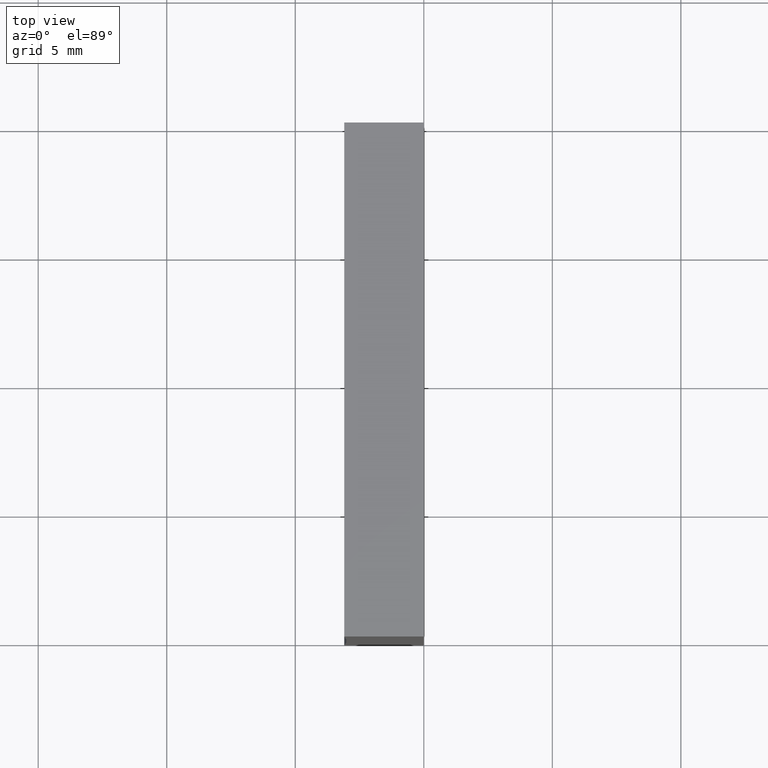
[diagram: clean part render]
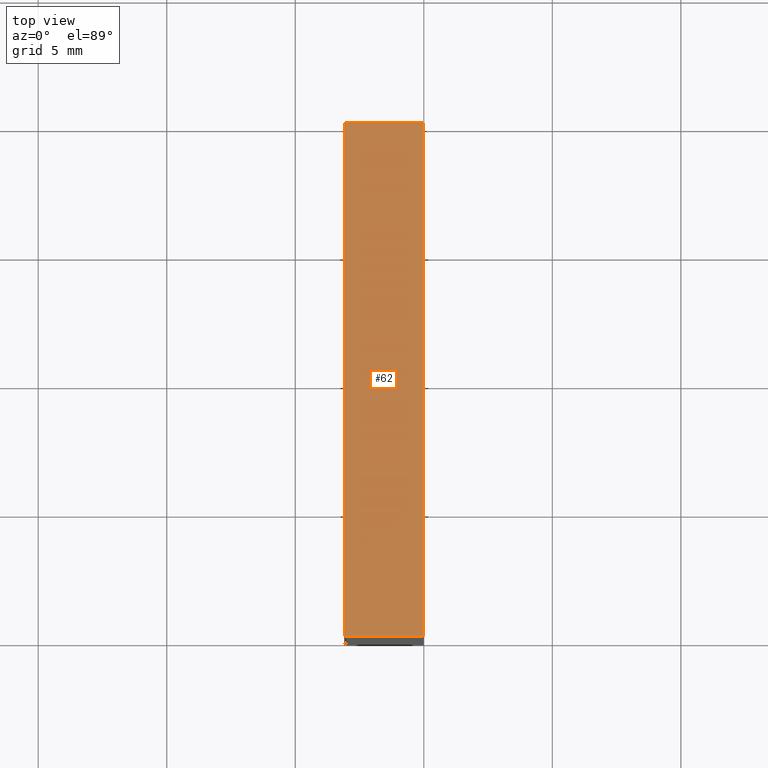
[diagram: same view with one face highlighted and labeled with its STEP entity id]
A machine part, top view. The second image highlights one B-rep face of the part: STEP entity #62.
In plain terms, the highlighted planar face has unit normal (0, 0, -1).
Its self-contained STEP definition (entity closure, byte-faithful):
#4 = ORIENTED_EDGE ( 'NONE', *, *, #80, .T. ) ;
#8 = DIRECTION ( 'NONE',  ( 1.000000000000000000, -0.0000000000000000000, 1.120348000704782300E-015 ) ) ;
#18 = VERTEX_POINT ( 'NONE', #132 ) ;
#19 = LINE ( 'NONE', #75, #168 ) ;
#26 = DIRECTION ( 'NONE',  ( 1.000000000000000000, -0.0000000000000000000, 1.120348000704782300E-015 ) ) ;
#35 = CARTESIAN_POINT ( 'NONE',  ( 1.224646799147353300E-015, 20.00000000000000000, 20.00000000000000000 ) ) ;
#41 = CARTESIAN_POINT ( 'NONE',  ( -3.096758283828839000, 20.00000000000000000, 19.99999999999999600 ) ) ;
#43 = VERTEX_POINT ( 'NONE', #71 ) ;
#49 = VECTOR ( 'NONE', #152, 1000.000000000000000 ) ;
#52 = LINE ( 'NONE', #35, #49 ) ;
#53 = EDGE_CURVE ( 'NONE', #130, #18, #202, .T. ) ;
#54 = VECTOR ( 'NONE', #26, 1000.000000000000000 ) ;
#62 = ADVANCED_FACE ( 'NONE', ( #104 ), #181, .F. ) ;
#71 = CARTESIAN_POINT ( 'NONE',  ( -3.096758283828839000, 20.00000000000000000, 19.99999999999999600 ) ) ;
#75 = CARTESIAN_POINT ( 'NONE',  ( 1.224646799147353300E-015, 20.00000000000000000, 20.00000000000000000 ) ) ;
#76 = ORIENTED_EDGE ( 'NONE', *, *, #173, .F. ) ;
#80 = EDGE_CURVE ( 'NONE', #43, #130, #190, .T. ) ;
#81 = EDGE_LOOP ( 'NONE', ( #151, #76, #108, #4 ) ) ;
#83 = VECTOR ( 'NONE', #87, 1000.000000000000000 ) ;
#87 = DIRECTION ( 'NONE',  ( -0.0000000000000000000, -1.000000000000000000, -0.0000000000000000000 ) ) ;
#97 = CARTESIAN_POINT ( 'NONE',  ( -3.096758283828839000, 0.0000000000000000000, 19.99999999999999600 ) ) ;
#98 = CARTESIAN_POINT ( 'NONE',  ( 1.224646799147353300E-015, 20.00000000000000000, 20.00000000000000000 ) ) ;
#101 = DIRECTION ( 'NONE',  ( -1.000000000000000000, 0.0000000000000000000, -1.120348000704782300E-015 ) ) ;
#104 = FACE_OUTER_BOUND ( 'NONE', #81, .T. ) ;
#108 = ORIENTED_EDGE ( 'NONE', *, *, #177, .F. ) ;
#110 = DIRECTION ( 'NONE',  ( 1.120348000704782300E-015, 0.0000000000000000000, -1.000000000000000000 ) ) ;
#115 = CARTESIAN_POINT ( 'NONE',  ( 1.224646799147353300E-015, 20.00000000000000000, 20.00000000000000000 ) ) ;
#130 = VERTEX_POINT ( 'NONE', #97 ) ;
#132 = CARTESIAN_POINT ( 'NONE',  ( 1.224646799147353300E-015, 0.0000000000000000000, 20.00000000000000000 ) ) ;
#145 = AXIS2_PLACEMENT_3D ( 'NONE', #98, #110, #101 ) ;
#151 = ORIENTED_EDGE ( 'NONE', *, *, #53, .T. ) ;
#152 = DIRECTION ( 'NONE',  ( -0.0000000000000000000, -1.000000000000000000, -0.0000000000000000000 ) ) ;
#167 = VERTEX_POINT ( 'NONE', #115 ) ;
#168 = VECTOR ( 'NONE', #8, 1000.000000000000000 ) ;
#173 = EDGE_CURVE ( 'NONE', #167, #18, #52, .T. ) ;
#177 = EDGE_CURVE ( 'NONE', #43, #167, #19, .T. ) ;
#181 = PLANE ( 'NONE',  #145 ) ;
#190 = LINE ( 'NONE', #41, #83 ) ;
#193 = CARTESIAN_POINT ( 'NONE',  ( 1.224646799147353300E-015, 0.0000000000000000000, 20.00000000000000000 ) ) ;
#202 = LINE ( 'NONE', #193, #54 ) ;